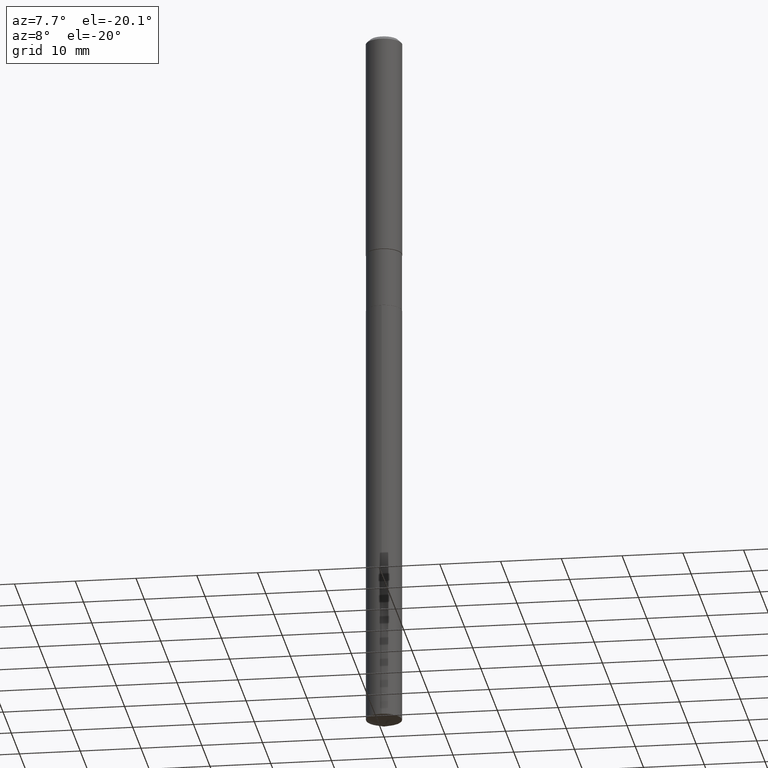
[diagram: clean part render]
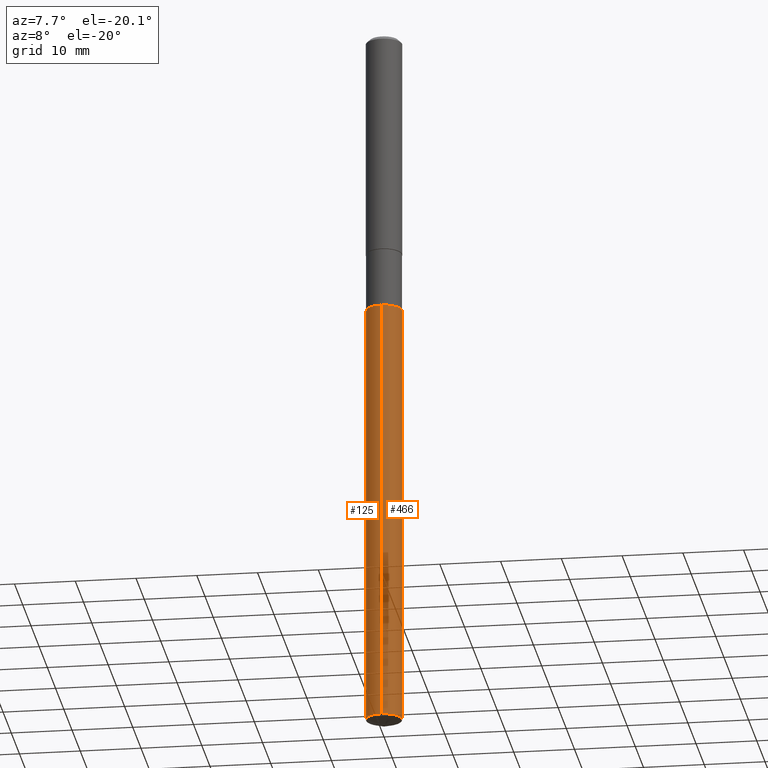
[diagram: same view with one multi-face feature highlighted, each face labeled with its STEP entity id]
A machine part, auxiliary view. The highlighted faces form ONE feature: a constant-radius fillet chain: 2 tangent blend faces with common blend radius 2.9502 mm. The faces share edges in the B-rep.
Their STEP definitions:
[1] entity #466 (Cylinder):
#3 = CARTESIAN_POINT ( 'NONE',  ( 8.252953875854696891E-16, 0.1161499999999837940, -4.639247298257325625 ) ) ;
#13 = CARTESIAN_POINT ( 'NONE',  ( -8.110711150131462485E-16, -0.1161500000000161847, -4.639247298257323848 ) ) ;
#26 = DIRECTION ( 'NONE',  ( -6.982962677686265922E-15, -1.000000000000000000, 2.351999994545211393E-15 ) ) ;
#32 = VERTEX_POINT ( 'NONE', #192 ) ;
#66 = ORIENTED_EDGE ( 'NONE', *, *, #211, .F. ) ;
#69 = EDGE_CURVE ( 'NONE', #208, #32, #80, .T. ) ;
#78 = ORIENTED_EDGE ( 'NONE', *, *, #310, .T. ) ;
#80 = LINE ( 'NONE', #427, #90 ) ;
#83 = CARTESIAN_POINT ( 'NONE',  ( -8.110711150132146822E-16, -0.1161500000000064425, -1.844499999999999140 ) ) ;
#90 = VECTOR ( 'NONE', #161, 39.37007874015748143 ) ;
#92 = EDGE_LOOP ( 'NONE', ( #78, #411, #66, #461 ) ) ;
#109 = EDGE_CURVE ( 'NONE', #315, #274, #388, .T. ) ;
#112 = CARTESIAN_POINT ( 'NONE',  ( 4.510667213008483121E-29, -6.440037329496180678E-15, -1.844499999999999362 ) ) ;
#114 = FACE_OUTER_BOUND ( 'NONE', #92, .T. ) ;
#128 = DIRECTION ( 'NONE',  ( -6.982962677686265922E-15, -1.000000000000000000, 2.351999994545211393E-15 ) ) ;
#136 = DIRECTION ( 'NONE',  ( -2.445477622213737592E-29, 3.491468713788411953E-15, 1.000000000000000000 ) ) ;
#140 = CARTESIAN_POINT ( 'NONE',  ( 1.134515919063907400E-28, -1.619781008430632187E-14, -4.639247298257324736 ) ) ;
#145 = VECTOR ( 'NONE', #136, 39.37007874015748143 ) ;
#149 = AXIS2_PLACEMENT_3D ( 'NONE', #204, #163, #128 ) ;
#158 = AXIS2_PLACEMENT_3D ( 'NONE', #112, #260, #26 ) ;
#161 = DIRECTION ( 'NONE',  ( -2.445477622213737592E-29, 3.491468713788411953E-15, 1.000000000000000000 ) ) ;
#163 = DIRECTION ( 'NONE',  ( -2.445477622213737592E-29, 3.491468713788411953E-15, 1.000000000000000000 ) ) ;
#192 = CARTESIAN_POINT ( 'NONE',  ( 8.252953875854700835E-16, 0.1161499999999935501, -1.844499999999999584 ) ) ;
#197 = AXIS2_PLACEMENT_3D ( 'NONE', #140, #325, #439 ) ;
#204 = CARTESIAN_POINT ( 'NONE',  ( 4.510667213008483121E-29, -6.440037329496180678E-15, -1.844499999999999362 ) ) ;
#208 = VERTEX_POINT ( 'NONE', #3 ) ;
#211 = EDGE_CURVE ( 'NONE', #274, #32, #215, .T. ) ;
#215 = CIRCLE ( 'NONE', #149, 0.1161500000000000032 ) ;
#223 = CYLINDRICAL_SURFACE ( 'NONE', #158, 0.1161500000000000032 ) ;
#260 = DIRECTION ( 'NONE',  ( -2.445477622213737592E-29, 3.491468713788411953E-15, 1.000000000000000000 ) ) ;
#274 = VERTEX_POINT ( 'NONE', #287 ) ;
#287 = CARTESIAN_POINT ( 'NONE',  ( -8.110711150132146822E-16, -0.1161500000000064425, -1.844499999999999140 ) ) ;
#310 = EDGE_CURVE ( 'NONE', #315, #208, #392, .T. ) ;
#315 = VERTEX_POINT ( 'NONE', #13 ) ;
#325 = DIRECTION ( 'NONE',  ( -2.445477622213737592E-29, 3.491468713788411953E-15, 1.000000000000000000 ) ) ;
#388 = LINE ( 'NONE', #83, #145 ) ;
#392 = CIRCLE ( 'NONE', #197, 0.1161500000000000032 ) ;
#411 = ORIENTED_EDGE ( 'NONE', *, *, #69, .T. ) ;
#427 = CARTESIAN_POINT ( 'NONE',  ( 8.252953875854013540E-16, 0.1161499999999935639, -1.844499999999999584 ) ) ;
#439 = DIRECTION ( 'NONE',  ( -6.982962677686265922E-15, -1.000000000000000000, 4.703999989090422785E-15 ) ) ;
#461 = ORIENTED_EDGE ( 'NONE', *, *, #109, .F. ) ;
#466 = ADVANCED_FACE ( 'NONE', ( #114 ), #223, .T. ) ;
[2] entity #125 (Cylinder):
#1 = EDGE_LOOP ( 'NONE', ( #258, #424, #430, #463 ) ) ;
#3 = CARTESIAN_POINT ( 'NONE',  ( 8.252953875854696891E-16, 0.1161499999999837940, -4.639247298257325625 ) ) ;
#11 = CYLINDRICAL_SURFACE ( 'NONE', #478, 0.1161500000000000032 ) ;
#13 = CARTESIAN_POINT ( 'NONE',  ( -8.110711150131462485E-16, -0.1161500000000161847, -4.639247298257323848 ) ) ;
#32 = VERTEX_POINT ( 'NONE', #192 ) ;
#39 = AXIS2_PLACEMENT_3D ( 'NONE', #247, #394, #44 ) ;
#44 = DIRECTION ( 'NONE',  ( -6.982962677686265922E-15, -1.000000000000000000, 4.703999989090422785E-15 ) ) ;
#46 = DIRECTION ( 'NONE',  ( -6.982962677686265922E-15, -1.000000000000000000, 2.351999994545211393E-15 ) ) ;
#51 = CIRCLE ( 'NONE', #222, 0.1161500000000000032 ) ;
#69 = EDGE_CURVE ( 'NONE', #208, #32, #80, .T. ) ;
#80 = LINE ( 'NONE', #427, #90 ) ;
#83 = CARTESIAN_POINT ( 'NONE',  ( -8.110711150132146822E-16, -0.1161500000000064425, -1.844499999999999140 ) ) ;
#90 = VECTOR ( 'NONE', #161, 39.37007874015748143 ) ;
#109 = EDGE_CURVE ( 'NONE', #315, #274, #388, .T. ) ;
#125 = ADVANCED_FACE ( 'NONE', ( #356 ), #11, .T. ) ;
#131 = EDGE_CURVE ( 'NONE', #32, #274, #51, .T. ) ;
#136 = DIRECTION ( 'NONE',  ( -2.445477622213737592E-29, 3.491468713788411953E-15, 1.000000000000000000 ) ) ;
#145 = VECTOR ( 'NONE', #136, 39.37007874015748143 ) ;
#156 = CIRCLE ( 'NONE', #39, 0.1161500000000000032 ) ;
#157 = EDGE_CURVE ( 'NONE', #208, #315, #156, .T. ) ;
#161 = DIRECTION ( 'NONE',  ( -2.445477622213737592E-29, 3.491468713788411953E-15, 1.000000000000000000 ) ) ;
#173 = CARTESIAN_POINT ( 'NONE',  ( 4.510667213008483121E-29, -6.440037329496180678E-15, -1.844499999999999362 ) ) ;
#192 = CARTESIAN_POINT ( 'NONE',  ( 8.252953875854700835E-16, 0.1161499999999935501, -1.844499999999999584 ) ) ;
#208 = VERTEX_POINT ( 'NONE', #3 ) ;
#222 = AXIS2_PLACEMENT_3D ( 'NONE', #319, #456, #385 ) ;
#247 = CARTESIAN_POINT ( 'NONE',  ( 1.134515919063907400E-28, -1.619781008430632187E-14, -4.639247298257324736 ) ) ;
#258 = ORIENTED_EDGE ( 'NONE', *, *, #69, .F. ) ;
#274 = VERTEX_POINT ( 'NONE', #287 ) ;
#287 = CARTESIAN_POINT ( 'NONE',  ( -8.110711150132146822E-16, -0.1161500000000064425, -1.844499999999999140 ) ) ;
#315 = VERTEX_POINT ( 'NONE', #13 ) ;
#319 = CARTESIAN_POINT ( 'NONE',  ( 4.510667213008483121E-29, -6.440037329496180678E-15, -1.844499999999999362 ) ) ;
#348 = DIRECTION ( 'NONE',  ( -2.445477622213737592E-29, 3.491468713788411953E-15, 1.000000000000000000 ) ) ;
#356 = FACE_OUTER_BOUND ( 'NONE', #1, .T. ) ;
#385 = DIRECTION ( 'NONE',  ( -6.982962677686265922E-15, -1.000000000000000000, 2.351999994545211393E-15 ) ) ;
#388 = LINE ( 'NONE', #83, #145 ) ;
#394 = DIRECTION ( 'NONE',  ( -2.445477622213737592E-29, 3.491468713788411953E-15, 1.000000000000000000 ) ) ;
#424 = ORIENTED_EDGE ( 'NONE', *, *, #157, .T. ) ;
#427 = CARTESIAN_POINT ( 'NONE',  ( 8.252953875854013540E-16, 0.1161499999999935639, -1.844499999999999584 ) ) ;
#430 = ORIENTED_EDGE ( 'NONE', *, *, #109, .T. ) ;
#456 = DIRECTION ( 'NONE',  ( -2.445477622213737592E-29, 3.491468713788411953E-15, 1.000000000000000000 ) ) ;
#463 = ORIENTED_EDGE ( 'NONE', *, *, #131, .F. ) ;
#478 = AXIS2_PLACEMENT_3D ( 'NONE', #173, #348, #46 ) ;